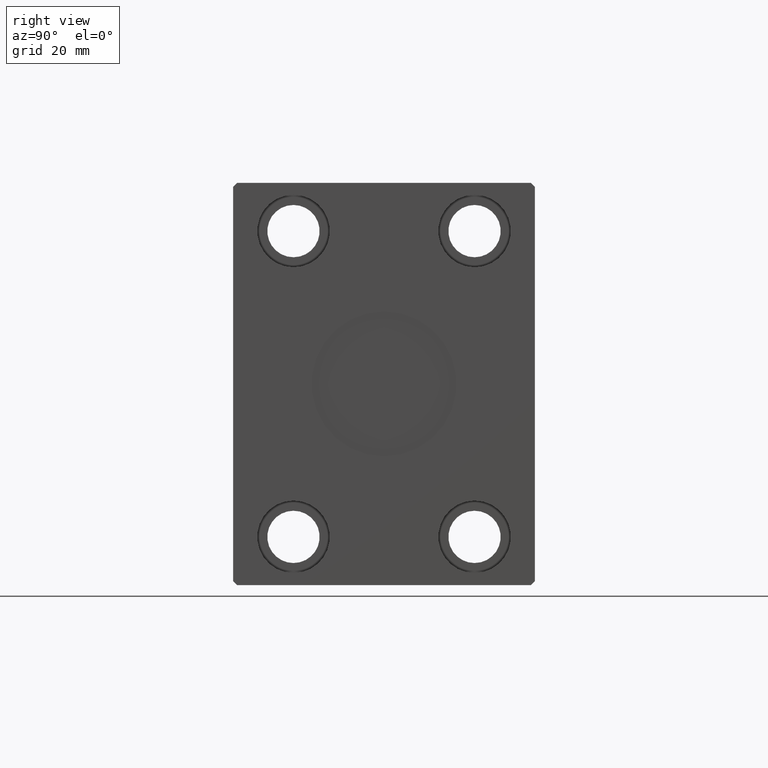
[diagram: clean part render]
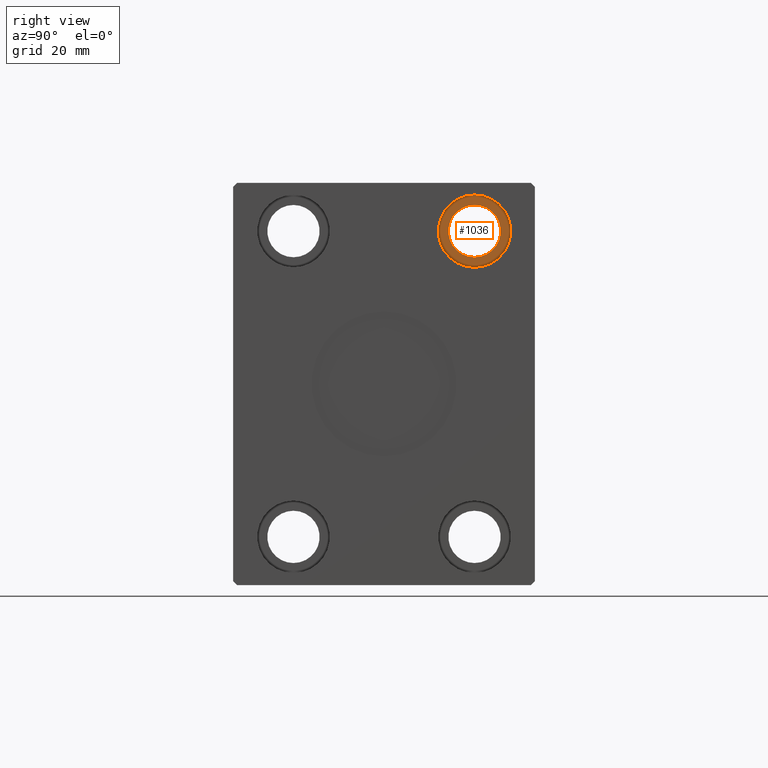
[diagram: same view with one face highlighted and labeled with its STEP entity id]
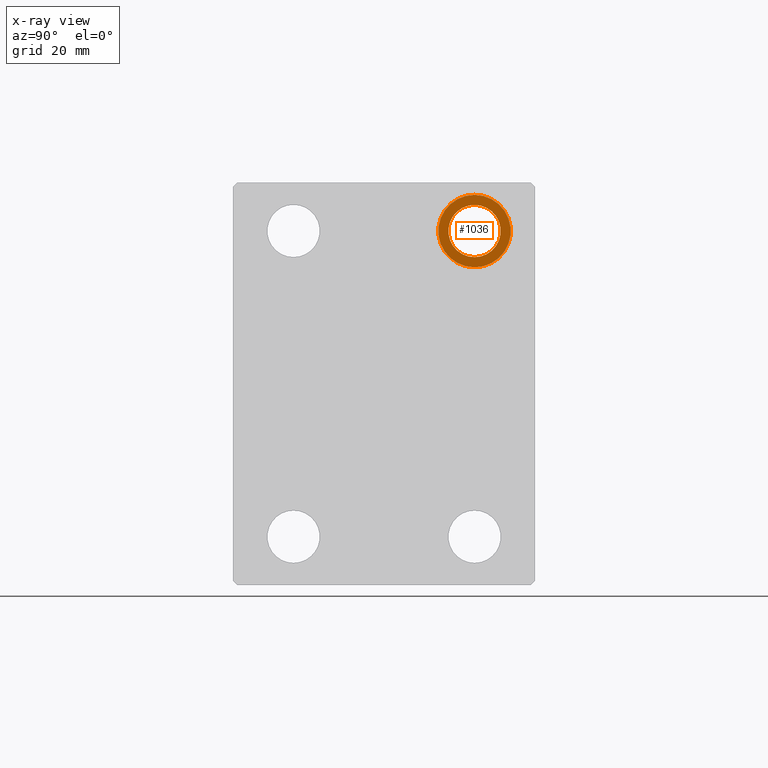
[diagram: x-ray of the same camera — body ghosted, the highlighted face saturated]
A machine part, right view. The second image highlights one B-rep face of the part: STEP entity #1036.
The next image is the same camera in x-ray: the body ghosted, the highlighted face saturated — about 0% of this face is hidden behind the body in this view.
In plain terms, the highlighted planar face has unit normal (-1, 0, 0).
Its self-contained STEP definition (entity closure, byte-faithful):
#1011 = VERTEX_POINT ( 'NONE', #1033 ) ;
#1033 = CARTESIAN_POINT ( 'NONE',  ( 121.6700000000000017, 22.50000000000000000, 47.00000000000000000 ) ) ;
#1036 = ADVANCED_FACE ( 'NONE', ( #7877, #27849 ), #24423, .F. ) ;
#3160 = CIRCLE ( 'NONE', #11369, 6.499999999999999112 ) ;
#3361 = EDGE_CURVE ( 'NONE', #40108, #7738, #42031, .T. ) ;
#4569 = ORIENTED_EDGE ( 'NONE', *, *, #3361, .T. ) ;
#6024 = DIRECTION ( 'NONE',  ( 0.000000000000000000, 0.000000000000000000, -1.000000000000000000 ) ) ;
#7738 = VERTEX_POINT ( 'NONE', #10348 ) ;
#7877 = FACE_BOUND ( 'NONE', #25026, .T. ) ;
#8912 = AXIS2_PLACEMENT_3D ( 'NONE', #21738, #41279, #6024 ) ;
#9591 = CARTESIAN_POINT ( 'NONE',  ( 121.6700000000000017, 22.50000000000000000, 38.00000000000000000 ) ) ;
#10348 = CARTESIAN_POINT ( 'NONE',  ( 121.6700000000000017, 22.50000000000000000, 31.50000000000000000 ) ) ;
#10436 = VERTEX_POINT ( 'NONE', #20748 ) ;
#11369 = AXIS2_PLACEMENT_3D ( 'NONE', #38254, #42122, #35651 ) ;
#11927 = ORIENTED_EDGE ( 'NONE', *, *, #23670, .T. ) ;
#12511 = DIRECTION ( 'NONE',  ( 0.000000000000000000, 0.000000000000000000, -1.000000000000000000 ) ) ;
#13799 = ORIENTED_EDGE ( 'NONE', *, *, #18078, .T. ) ;
#14742 = CARTESIAN_POINT ( 'NONE',  ( 121.6700000000000017, 22.50000000000000000, 38.00000000000000000 ) ) ;
#15230 = AXIS2_PLACEMENT_3D ( 'NONE', #9591, #22708, #16246 ) ;
#16246 = DIRECTION ( 'NONE',  ( 0.000000000000000000, 0.000000000000000000, 1.000000000000000000 ) ) ;
#18078 = EDGE_CURVE ( 'NONE', #7738, #40108, #3160, .T. ) ;
#18096 = DIRECTION ( 'NONE',  ( 0.000000000000000000, 0.000000000000000000, -1.000000000000000000 ) ) ;
#18502 = CARTESIAN_POINT ( 'NONE',  ( 121.6700000000000017, 22.50000000000000000, 44.50000000000000000 ) ) ;
#20748 = CARTESIAN_POINT ( 'NONE',  ( 121.6700000000000017, 22.50000000000000000, 28.99999999999999645 ) ) ;
#20993 = DIRECTION ( 'NONE',  ( -1.000000000000000000, 0.000000000000000000, 0.000000000000000000 ) ) ;
#21083 = EDGE_LOOP ( 'NONE', ( #42000, #11927 ) ) ;
#21542 = CARTESIAN_POINT ( 'NONE',  ( 121.6700000000000017, 22.50000000000000000, 38.00000000000000000 ) ) ;
#21738 = CARTESIAN_POINT ( 'NONE',  ( 121.6700000000000017, 22.50000000000000000, 38.00000000000000000 ) ) ;
#21811 = CIRCLE ( 'NONE', #39654, 9.000000000000001776 ) ;
#22708 = DIRECTION ( 'NONE',  ( -1.000000000000000000, 0.000000000000000000, 0.000000000000000000 ) ) ;
#23670 = EDGE_CURVE ( 'NONE', #1011, #10436, #21811, .T. ) ;
#24423 = PLANE ( 'NONE',  #41320 ) ;
#24968 = DIRECTION ( 'NONE',  ( 1.000000000000000000, -0.000000000000000000, -0.000000000000000000 ) ) ;
#25026 = EDGE_LOOP ( 'NONE', ( #4569, #13799 ) ) ;
#27849 = FACE_OUTER_BOUND ( 'NONE', #21083, .T. ) ;
#33594 = CIRCLE ( 'NONE', #8912, 9.000000000000001776 ) ;
#34654 = EDGE_CURVE ( 'NONE', #10436, #1011, #33594, .T. ) ;
#35651 = DIRECTION ( 'NONE',  ( 0.000000000000000000, 0.000000000000000000, 1.000000000000000000 ) ) ;
#38254 = CARTESIAN_POINT ( 'NONE',  ( 121.6700000000000017, 22.50000000000000000, 38.00000000000000000 ) ) ;
#39654 = AXIS2_PLACEMENT_3D ( 'NONE', #21542, #24968, #18096 ) ;
#40108 = VERTEX_POINT ( 'NONE', #18502 ) ;
#41279 = DIRECTION ( 'NONE',  ( 1.000000000000000000, -0.000000000000000000, -0.000000000000000000 ) ) ;
#41320 = AXIS2_PLACEMENT_3D ( 'NONE', #14742, #20993, #12511 ) ;
#42000 = ORIENTED_EDGE ( 'NONE', *, *, #34654, .T. ) ;
#42031 = CIRCLE ( 'NONE', #15230, 6.499999999999999112 ) ;
#42122 = DIRECTION ( 'NONE',  ( -1.000000000000000000, 0.000000000000000000, 0.000000000000000000 ) ) ;